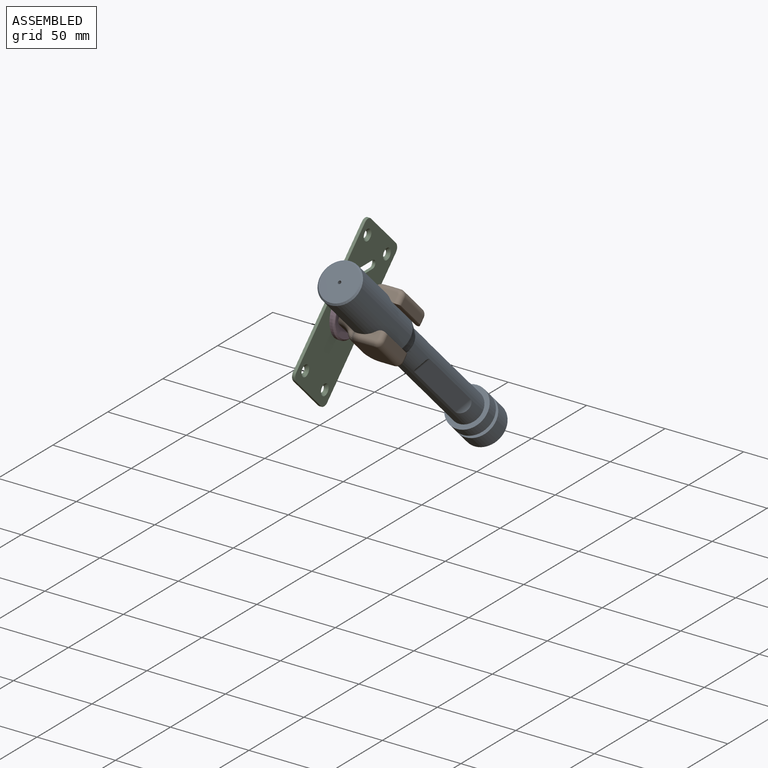
[diagram: assembled view]
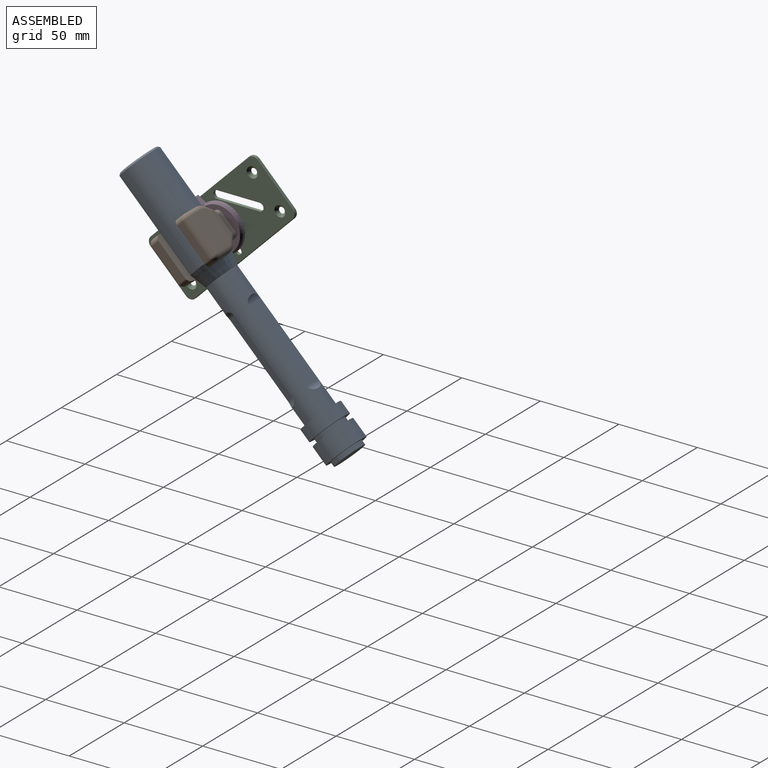
[diagram: assembled view, second angle]
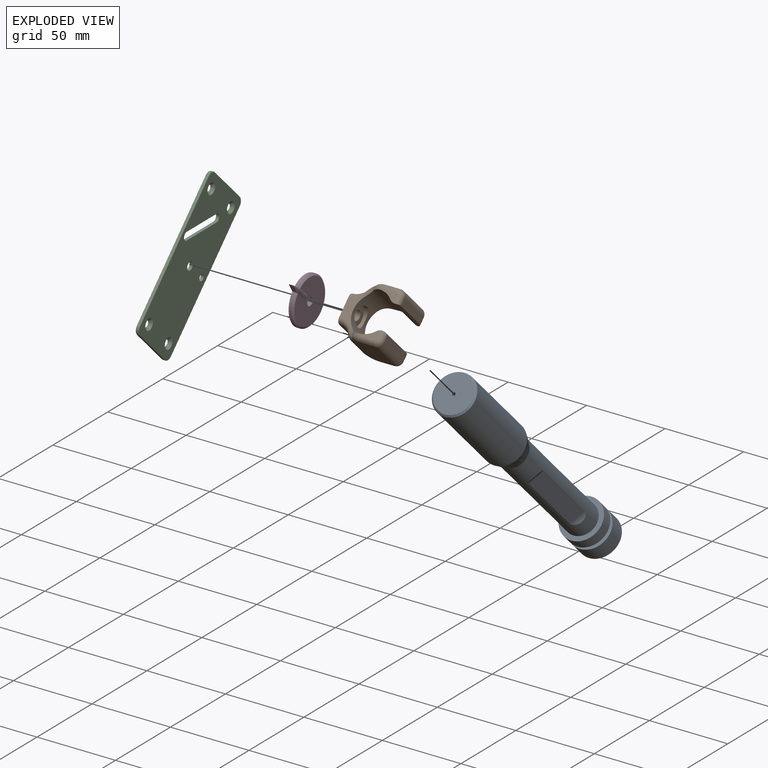
[diagram: exploded view]
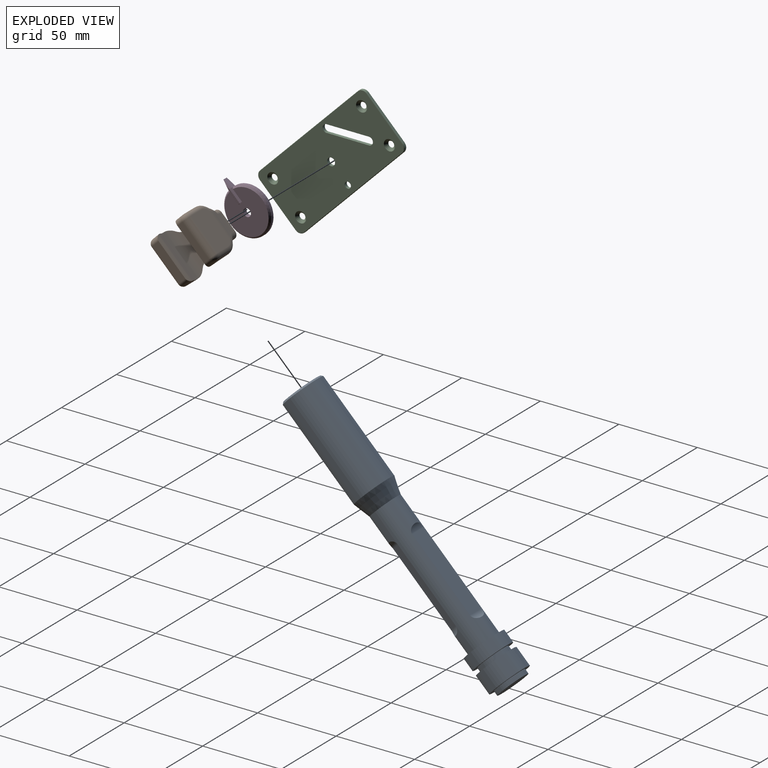
[diagram: exploded view, second angle]
ASSEMBLY  parts=4 mates=3
PART A: 25 faces, bbox 26x190x26 mm
  f0: cylinder r=10mm len=89mm, axis (0,1,0), area 3648.4mm2, adj f6,f7,f15,f16,f17,f18,f19,f20
  f1: cylinder r=13mm len=26mm, axis (0,1,0), area 980.2mm2, adj f2,f14
  f2: plane 26x26mm, normal (0,-1,0), area 216.8mm2, adj f1,f3
  f3: cylinder r=10mm len=20mm, axis (0,1,0), area 188.5mm2, adj f2,f4
  f4: plane 26x26mm, normal (0,1,0), area 216.8mm2, adj f3,f5
  f5: cylinder r=13mm len=26mm, axis (0,1,0), area 653.5mm2, adj f4,f6
  f6: plane 26x26mm, normal (0,-1,0), area 216.8mm2, adj f0,f5
  f7: cone r=13mm half-angle=16.7deg, axis (0,-1,0), area 754.4mm2, adj f0,f8
  f8: cylinder r=13mm len=64mm, axis (0,1,0), area 5227.6mm2, adj f7,f24
  f9: plane 24x24mm, normal (0,-1,0), area 449.2mm2, adj f10,f24
  f10: cylinder r=1mm len=20mm, axis (0,1,0), area 125.7mm2, adj f9,f11
  f11: plane 2x2mm, normal (0,-1,0), area 3.1mm2, adj f10
  f12: plane 20x20mm, normal (0,1,0), area 314.2mm2, adj f13
  f13: cylinder r=10mm len=20mm, axis (0,1,0), area 188.5mm2, adj f12,f14
  f14: plane 26x26mm, normal (0,1,0), area 216.8mm2, adj f1,f13
  f15: cylinder r=6mm len=10.54mm, axis (1,0,0), area 36mm2, adj f0,f17
  f16: cylinder r=6mm len=10.54mm, axis (1,0,0), area 36mm2, adj f0,f17
  f17: plane 52.06x10.54mm, normal (0,0,1), area 548.5mm2, adj f0,f15,f16
  f18: cylinder r=6mm len=9.87mm, axis (-0.5,0,0.87), area 36mm2, adj f0,f20
  f19: cylinder r=6mm len=9.87mm, axis (-0.5,0,0.87), area 36mm2, adj f0,f20
  f20: plane 52.06x9.12mm, normal (-0.87,0,-0.5), area 548.5mm2, adj f0,f18,f19
  f21: cylinder r=6mm len=9.87mm, axis (-0.5,0,-0.87), area 36mm2, adj f0,f23
  f22: cylinder r=6mm len=9.87mm, axis (-0.5,0,-0.87), area 36mm2, adj f0,f23
  f23: plane 52.06x9.12mm, normal (0.87,0,-0.5), area 548.5mm2, adj f0,f21,f22
  f24: cone r=13mm half-angle=45deg, axis (0,1,0), area 111.1mm2, adj f8,f9
PART B: 63 faces, bbox 33.7x31.3x34.4 mm
  f0: cylinder r=13mm len=30mm, axis (0,1,0), area 1335.7mm2, adj f4,f5,f9,f10,f11,f12,f13,f14
  f1: plane 18x18mm, normal (-1,0,0), area 288mm2, adj f6,f11,f14,f22,f30,f35,f49,f57
  f2: plane 24x13.63mm, normal (0,0,1), area 320.6mm2, adj f3,f8,f17,f18,f19,f25,f26,f27
  f3: cylinder r=10.09mm len=19.1mm, axis (0,1,0), area 138mm2, adj f2,f6,f20,f28
  f4: plane 10.23x5.97mm, normal (0,-1,0), area 32.3mm2, adj f0,f13,f23,f24,f25,f62
  f5: plane 10.23x5.97mm, normal (0,1,0), area 32.3mm2, adj f0,f9,f15,f16,f17,f62
  f6: cylinder r=10.09mm len=12.55mm, axis (0,1,0), area 112.5mm2, adj f1,f3,f21,f22,f29,f30
  f7: plane 24x4.5mm, normal (1,0,0), area 108mm2, adj f8,f15,f23,f62
  f8: cylinder r=4mm len=24mm, axis (0,1,0), area 150.8mm2, adj f2,f7,f16,f24
  f9: cylinder r=8mm len=6.25mm, axis (0,0,-1), area 9.1mm2, adj f0,f5,f10,f18
  f10: cylinder r=8mm len=7.07mm, axis (0,0,-1), area 15.9mm2, adj f0,f9,f11,f19,f20,f21
  f11: plane 17.46x8mm, normal (0,1,0), area 91.1mm2, adj f0,f1,f10,f22,f39,f49
  f12: cylinder r=8mm len=7.07mm, axis (0,0,-1), area 15.9mm2, adj f0,f13,f14,f27,f28,f29
  f13: cylinder r=8mm len=6.25mm, axis (0,0,-1), area 9.1mm2, adj f0,f4,f12,f26
  f14: plane 17.46x8mm, normal (0,-1,0), area 91.1mm2, adj f0,f1,f12,f30,f40,f57
  f15: cylinder r=3mm len=4.97mm, axis (0,0,1), area 22.3mm2, adj f5,f7,f16,f62
  f16: torus R=1mm, axis (0,-1,0), area 21.5mm2, adj f5,f8,f15,f17
  f17: cylinder r=3mm len=9.23mm, axis (-1,0,0), area 43.5mm2, adj f2,f5,f16,f18
  f18: torus R=5mm, axis (0,0,-1), area 29.2mm2, adj f2,f9,f17,f19
  f19: torus R=11mm, axis (0,0,-1), area 3mm2, adj f2,f10,f18,f20
  f20: bspline ~10.35x7.35mm, area 33.7mm2, adj f3,f10,f19,f21
  f21: bspline ~6.36x5.55mm, area 12mm2, adj f6,f10,f20,f22
  f22: torus R=13.09mm, axis (0,1,0), area 34.6mm2, adj f1,f6,f11,f21
  f23: cylinder r=3mm len=4.97mm, axis (0,0,-1), area 22.3mm2, adj f4,f7,f24,f62
  f24: torus R=1mm, axis (0,-1,0), area 21.5mm2, adj f4,f8,f23,f25
  f25: cylinder r=3mm len=9.23mm, axis (1,0,0), area 43.5mm2, adj f2,f4,f24,f26
  f26: torus R=5mm, axis (0,0,-1), area 29.2mm2, adj f2,f13,f25,f27
  f27: torus R=11mm, axis (0,0,-1), area 3mm2, adj f2,f12,f26,f28
  f28: bspline ~9.96x7.28mm, area 33.7mm2, adj f3,f12,f27,f29
  f29: bspline ~6.36x5.55mm, area 12mm2, adj f6,f12,f28,f30
  f30: torus R=13.09mm, axis (0,1,0), area 34.6mm2, adj f1,f6,f14,f29
  f31: plane 24x13.63mm, normal (0,0,-1), area 320.6mm2, adj f32,f37,f44,f45,f46,f52,f53,f54
  f32: cylinder r=10.09mm len=19.1mm, axis (0,1,0), area 138mm2, adj f31,f35,f47,f55
  f33: plane 10.23x5.97mm, normal (0,-1,0), area 32.3mm2, adj f0,f41,f50,f51,f52,f61
  f34: plane 10.23x5.97mm, normal (0,1,0), area 32.3mm2, adj f0,f38,f42,f43,f44,f61
  f35: cylinder r=10.09mm len=12.55mm, axis (0,1,0), area 112.5mm2, adj f1,f32,f48,f49,f56,f57
  f36: plane 24x4.5mm, normal (1,0,0), area 108mm2, adj f37,f42,f50,f61
  f37: cylinder r=4mm len=24mm, axis (0,1,0), area 150.8mm2, adj f31,f36,f43,f51
  f38: cylinder r=8mm len=6.25mm, axis (0,0,1), area 9.1mm2, adj f0,f34,f39,f45
  f39: cylinder r=8mm len=7.07mm, axis (0,0,1), area 15.9mm2, adj f0,f11,f38,f46,f47,f48
  f40: cylinder r=8mm len=7.07mm, axis (0,0,1), area 15.9mm2, adj f0,f14,f41,f54,f55,f56
  f41: cylinder r=8mm len=6.25mm, axis (0,0,1), area 9.1mm2, adj f0,f33,f40,f53
  f42: cylinder r=3mm len=4.97mm, axis (0,0,-1), area 22.3mm2, adj f34,f36,f43,f61
  f43: torus R=1mm, axis (0,-1,0), area 21.5mm2, adj f34,f37,f42,f44
  f44: cylinder r=3mm len=9.23mm, axis (-1,0,0), area 43.5mm2, adj f31,f34,f43,f45
  f45: torus R=5mm, axis (0,0,1), area 29.2mm2, adj f31,f38,f44,f46
  f46: torus R=11mm, axis (0,0,1), area 3mm2, adj f31,f39,f45,f47
  f47: bspline ~10.35x7.35mm, area 33.7mm2, adj f32,f39,f46,f48
  f48: bspline ~6.36x5.55mm, area 12mm2, adj f35,f39,f47,f49
  f49: torus R=13.09mm, axis (0,1,0), area 34.6mm2, adj f1,f11,f35,f48
  f50: cylinder r=3mm len=4.97mm, axis (0,0,1), area 22.3mm2, adj f33,f36,f51,f61
  f51: torus R=1mm, axis (0,-1,0), area 21.5mm2, adj f33,f37,f50,f52
  f52: cylinder r=3mm len=9.23mm, axis (1,0,0), area 43.5mm2, adj f31,f33,f51,f53
  f53: torus R=5mm, axis (0,0,1), area 29.2mm2, adj f31,f41,f52,f54
  f54: torus R=11mm, axis (0,0,1), area 3mm2, adj f31,f40,f53,f55
  f55: bspline ~9.96x7.28mm, area 33.7mm2, adj f32,f40,f54,f56
  f56: bspline ~6.36x5.55mm, area 12mm2, adj f35,f40,f55,f57
  f57: torus R=13.09mm, axis (0,1,0), area 34.6mm2, adj f1,f14,f35,f56
  f58: cylinder r=6mm len=12mm, axis (-1,0,0), area 102.7mm2, adj f0,f60
  f59: cylinder r=3mm len=6mm, axis (-1,0,0), area 75.4mm2, adj f1,f60
  f60: plane 12x12mm, normal (1,0,0), area 84.8mm2, adj f58,f59
  f61: cylinder r=5mm len=30mm, axis (0,1,0), area 180.5mm2, adj f0,f33,f34,f36,f42,f50
  f62: cylinder r=5mm len=30mm, axis (0,1,0), area 180.5mm2, adj f0,f4,f5,f7,f15,f23
PART C: 40 faces, bbox 97.1x40.7x2 mm
  f0: plane 95.9x39.5mm, normal (0,0,-1), area 3538.6mm2, adj f18,f19,f20,f21,f22,f23,f24,f25
  f1: plane 95.9x39.5mm, normal (0,0,1), area 3435mm2, adj f10,f11,f12,f13,f14,f15,f16,f17
  f2: plane 32x1.5mm, normal (-1,0,0), area 48mm2, adj f7,f9,f12,f19
  f3: plane 32x1.5mm, normal (1,0,0), area 48mm2, adj f6,f8,f15,f24
  f4: plane 88.4x1.5mm, normal (0,-1,0), area 132.6mm2, adj f8,f9,f11,f20
  f5: plane 88.4x1.5mm, normal (0,1,0), area 132.6mm2, adj f6,f7,f16,f23
  f6: cylinder r=4mm len=4mm, axis (0,0,1), area 9.4mm2, adj f3,f5,f17,f25
  f7: cylinder r=4mm len=4mm, axis (0,0,-1), area 9.4mm2, adj f2,f5,f14,f21
  f8: cylinder r=4mm len=4mm, axis (0,0,-1), area 9.4mm2, adj f3,f4,f13,f22
  f9: cylinder r=4mm len=4mm, axis (0,0,1), area 9.4mm2, adj f2,f4,f10,f18
  f10: torus R=3.75mm, axis (0,0,1), area 2.4mm2, adj f1,f9,f11,f12
  f11: cylinder r=0.25mm len=88.4mm, axis (1,0,0), area 34.7mm2, adj f1,f4,f10,f13
  f12: cylinder r=0.25mm len=32mm, axis (0,1,0), area 12.6mm2, adj f1,f2,f10,f14
  f13: torus R=3.75mm, axis (0,0,1), area 2.4mm2, adj f1,f8,f11,f15
  f14: torus R=3.75mm, axis (0,0,1), area 2.4mm2, adj f1,f7,f12,f16
  f15: cylinder r=0.25mm len=32mm, axis (0,1,0), area 12.6mm2, adj f1,f3,f13,f17
  f16: cylinder r=0.25mm len=88.4mm, axis (-1,0,0), area 34.7mm2, adj f1,f5,f14,f17
  f17: torus R=3.75mm, axis (0,0,1), area 2.4mm2, adj f1,f6,f15,f16
  f18: torus R=3.75mm, axis (0,0,-1), area 2.4mm2, adj f0,f9,f19,f20
  f19: cylinder r=0.25mm len=32mm, axis (0,1,0), area 12.6mm2, adj f0,f2,f18,f21
  f20: cylinder r=0.25mm len=88.4mm, axis (-1,0,0), area 34.7mm2, adj f0,f4,f18,f22
  f21: torus R=3.75mm, axis (0,0,-1), area 2.4mm2, adj f0,f7,f19,f23
  f22: torus R=3.75mm, axis (0,0,-1), area 2.4mm2, adj f0,f8,f20,f24
  f23: cylinder r=0.25mm len=88.4mm, axis (1,0,0), area 34.7mm2, adj f0,f5,f21,f25
  f24: cylinder r=0.25mm len=32mm, axis (0,1,0), area 12.6mm2, adj f0,f3,f22,f25
  f25: torus R=3.75mm, axis (0,0,-1), area 2.4mm2, adj f0,f6,f23,f24
  f26: cylinder r=2mm len=4mm, axis (0,0,-1), area 6.3mm2, adj f0,f34
  f27: cylinder r=2.5mm len=5mm, axis (0,0,-1), area 31.4mm2, adj f0,f1
  f28: cylinder r=2mm len=4mm, axis (0,0,-1), area 6.3mm2, adj f0,f32
  f29: cylinder r=2mm len=4mm, axis (0,0,-1), area 6.3mm2, adj f0,f31
  f30: cylinder r=2mm len=4mm, axis (0,0,-1), area 6.3mm2, adj f0,f33
  f31: cone r=3.5mm half-angle=45deg, axis (0,0,1), area 36.7mm2, adj f1,f29
  f32: cone r=3.5mm half-angle=45deg, axis (0,0,1), area 36.7mm2, adj f1,f28
  f33: cone r=3.5mm half-angle=45deg, axis (0,0,1), area 36.7mm2, adj f1,f30
  f34: cone r=3.5mm half-angle=45deg, axis (0,0,1), area 36.7mm2, adj f1,f26
  f35: plane 19.13x19.13mm, normal (-0.71,-0.71,0), area 54.1mm2, adj f0,f1,f36,f38
  f36: cylinder r=2.5mm len=4.27mm, axis (0,0,-1), area 15.7mm2, adj f0,f1,f35,f37
  f37: plane 19.13x19.13mm, normal (0.71,0.71,0), area 54.1mm2, adj f0,f1,f36,f38
  f38: cylinder r=2.5mm len=4.27mm, axis (0,0,-1), area 15.7mm2, adj f0,f1,f35,f37
  f39: cylinder r=2mm len=4mm, axis (0,0,-1), area 25.1mm2, adj f0,f1
PART D: 15 faces, bbox 4x35.9x30 mm
  f0: cylinder r=15mm len=30mm, axis (1,0,0), area 182.5mm2, adj f2,f4,f8,f9
  f1: cylinder r=2.5mm len=5mm, axis (1,0,0), area 47.1mm2, adj f2,f3
  f2: plane 35.93x30mm, normal (-1,0,0), area 696.1mm2, adj f0,f1,f8,f9
  f3: plane 28x27.92mm, normal (1,0,0), area 571.3mm2, adj f1,f4,f5,f11,f13
  f4: cone r=15mm half-angle=45deg, axis (-1,0,0), area 124.6mm2, adj f0,f3,f6,f7
  f5: plane 3x1mm, normal (0,1,0), area 2mm2, adj f3,f10,f11,f13
  f6: plane 1.01x1mm, normal (0,0,1), area 0.5mm2, adj f4,f9,f11
  f7: plane 1.01x1mm, normal (0,0,-1), area 0.5mm2, adj f4,f8,f13
  f8: plane 6x3mm, normal (0,-0.24,-0.97), area 18.6mm2, adj f0,f2,f7,f9,f14
  f9: plane 6x3mm, normal (0,-0.24,0.97), area 18.6mm2, adj f0,f2,f6,f8,f12
  f10: plane 11.11x1mm, normal (1,0,0), area 10.1mm2, adj f5,f11,f12,f13,f14
  f11: plane 9.24x1mm, normal (0.71,0,0.71), area 13mm2, adj f3,f5,f6,f10,f12
  f12: plane 6.12x1.5mm, normal (0.71,-0.17,0.69), area 5.8mm2, adj f9,f10,f11,f14
  f13: plane 9.24x1mm, normal (0.71,0,-0.71), area 13mm2, adj f3,f5,f7,f10,f14
  f14: plane 6.12x1.5mm, normal (0.71,-0.17,-0.69), area 5.8mm2, adj f8,f10,f12,f13
PLACE A rot(axis=(-1,0,0),45deg) t=(63.22,-36.49,29.96)mm
PLACE B rot(axis=(-1,0,0),45deg) t=(63.22,-36.49,29.96)mm
PLACE C rot(axis=(-0.36,0.86,-0.36),98.4deg) t=(39.22,0.99,-7.52)mm
PLACE D rot(axis=(-1,0,0),45deg) t=(63.22,-36.49,29.96)mm
MATE fastened D.f1 <-> B.f58  axis (1,0,0) through (44.22,0.99,-7.52)mm
MATE fastened A.f0 <-> B.f0  axis (0,-0.71,0.71) through (63.22,0.99,-7.52)mm
MATE revolute C.f27 <-> D.f1  axis (1,0,0) through (41.22,0.99,-7.52)mm
